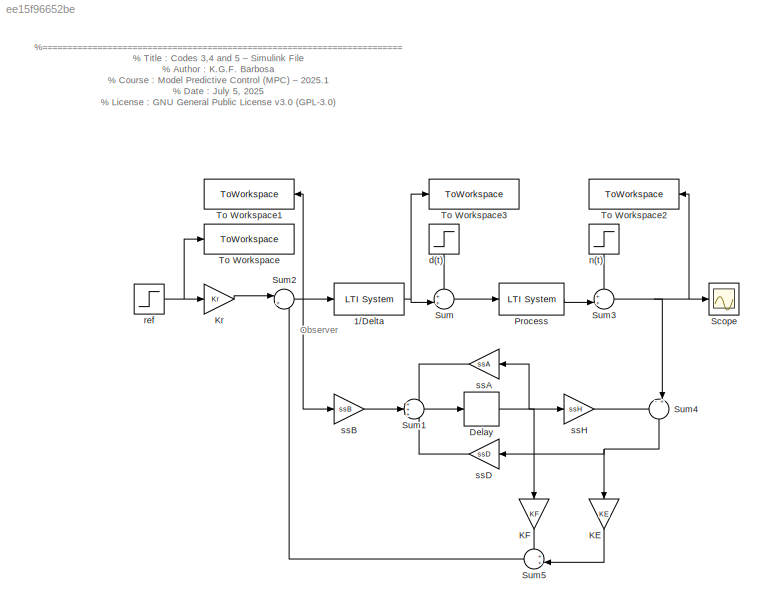
MODEL slx_ee15f96652be
KIND model
CONFIG AbsTol = auto
CONFIG EnableMultiTasking = off
CONFIG FixedStep = auto
CONFIG MaxStep = auto
CONFIG MinStep = auto
CONFIG RelTol = 1e-3
CONFIG SampleTimeConstraint = Unconstrained
CONFIG SolverName = VariableStepAuto
CONFIG StartTime = 0.0
CONFIG StopTime = Tsim
BLOCK [Reference] 1//Delta  REF=cstblocks/LTI System
  SourceBlock = cstblocks/LTI System
  SourceType = LTI Block
BLOCK [Delay] Delay
  DelayLength = 1
  InputPortMap = u0
  SampleTime = Ts
BLOCK [Gain] KE
  Gain = KE
  Multiplication = Matrix(K*u)
  NameLocation = left
BLOCK [Gain] KF
  Gain = KF
  Multiplication = Matrix(K*u)
  NameLocation = left
BLOCK [Gain] Kr
  Gain = Kr
  Multiplication = Matrix(K*u)
BLOCK [Reference] Process  REF=cstblocks/LTI System
  SourceBlock = cstblocks/LTI System
  SourceType = LTI Block
BLOCK [Scope] Scope
  Floating = off
  NumInputPorts = 1
  ScopeSpecificationString = Simulink.scopes.TimeScopeBlockCfg('CurrentConfiguration', extmgr.ConfigurationSet(extmgr.Configuration('Core','General UI',true),extmgr.Configuration('Core','Source UI',true),extmgr.Configuration('Sources','WiredSimulink',true),extmgr.Configuration('Visuals','Time Domain',true,'SerializedDisplays',{struct('MinYLimReal','-1.17177','MaxYLimReal','1.97275','YLabelReal','','MinYLimMag','0.00000','MaxY...<+1356ch>
BLOCK [Sum] Sum
  Inputs = ++|
BLOCK [Sum] Sum1
  Inputs = +++
BLOCK [Sum] Sum2
  Inputs = |+-
BLOCK [Sum] Sum3
  Inputs = ++|
BLOCK [Sum] Sum4
  Inputs = -+|
  NameLocation = left
BLOCK [Sum] Sum5
  Inputs = ++|
  NameLocation = top
BLOCK [ToWorkspace] To Workspace
  FixptAsFi = on
  MaxDataPoints = inf
  SampleTime = Ts
  VariableName = ref
BLOCK [ToWorkspace] To Workspace1
  FixptAsFi = on
  MaxDataPoints = inf
  NameLocation = top
  SampleTime = Ts
  VariableName = du
BLOCK [ToWorkspace] To Workspace2
  FixptAsFi = on
  MaxDataPoints = inf
  NameLocation = top
  SampleTime = Ts
  VariableName = y
BLOCK [ToWorkspace] To Workspace3
  FixptAsFi = on
  MaxDataPoints = inf
  SampleTime = Ts
  VariableName = u
BLOCK [Step] d(t)
  After = distFinalValue
  Before = distInitialValue
  NameLocation = right
  SampleTime = Ts
  Time = Tdist
BLOCK [Step] n(t)
  After = noiseFinalValue
  Before = noiseInitialValue
  NameLocation = left
  SampleTime = Ts
  Time = Tnoise
BLOCK [Step] ref
  After = refFinalValue
  Before = refInitialValue
  SampleTime = Ts
  Time = Tref
BLOCK [Gain] ssA
  Gain = ssA
  Multiplication = Matrix(K*u)
  NameLocation = top
BLOCK [Gain] ssB
  Gain = ssB
  Multiplication = Matrix(K*u)
BLOCK [Gain] ssD
  Gain = ssD
  Multiplication = Matrix(K*u)
BLOCK [Gain] ssH
  Gain = ssH
  Multiplication = Matrix(K*u)
ANNOTATION (root): %======================================================================== % Title : Codes 3,4 and 5 – Simulink File % Author : K.G.F. Barbosa % Course : Model Predictive Control (MPC) – 2025.1 % Date : July 5, 2025 % License : GNU General Public License v3.0 (GPL-3.0) % Repository : https://github.com/kgfbarbosa/CTRL-ModelPredictiveControl % ========================================================...<+15ch>
ANNOTATION (root): Observer
NET 1//Delta:1 -> Sum:2, To Workspace3:1
NET Delay:1 -> KF:1, ssA:1, ssH:1
LINE KE:1 -> Sum5:2
LINE KF:1 -> Sum5:1
LINE Kr:1 -> Sum2:1
LINE Process:1 -> Sum3:2
LINE Sum1:1 -> Delay:1
NET Sum2:1 -> 1//Delta:1, To Workspace1:1, ssB:1
NET Sum3:1 -> Scope:1, Sum4:2, To Workspace2:1
NET Sum4:1 -> KE:1, ssD:1
LINE Sum5:1 -> Sum2:2
LINE Sum:1 -> Process:1
LINE d(t):1 -> Sum:1
LINE n(t):1 -> Sum3:1
NET ref:1 -> Kr:1, To Workspace:1
LINE ssA:1 -> Sum1:1
LINE ssB:1 -> Sum1:2
LINE ssD:1 -> Sum1:3
LINE ssH:1 -> Sum4:1
note: NET lines group one-source signal fan-out (src -> all destinations, sorted); 1:1 wires keep LINE
